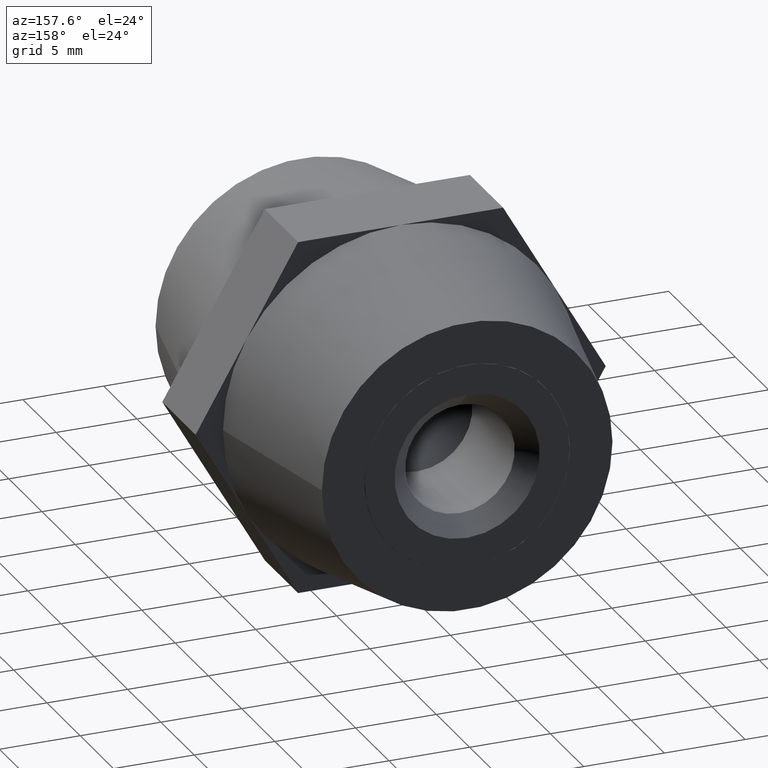
[diagram: clean part render]
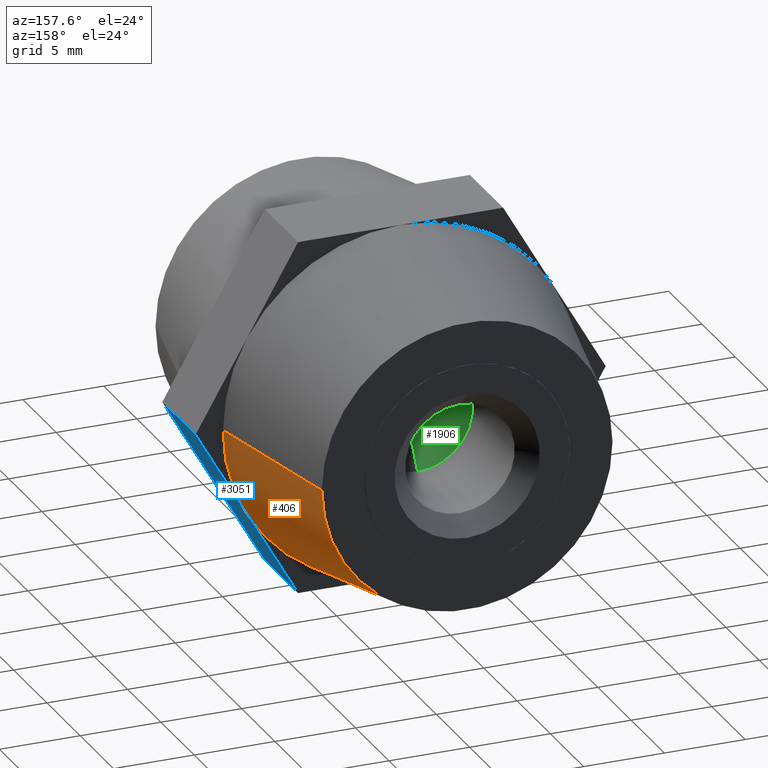
[diagram: same view with three faces highlighted in distinct colors, each labeled with its STEP entity id]
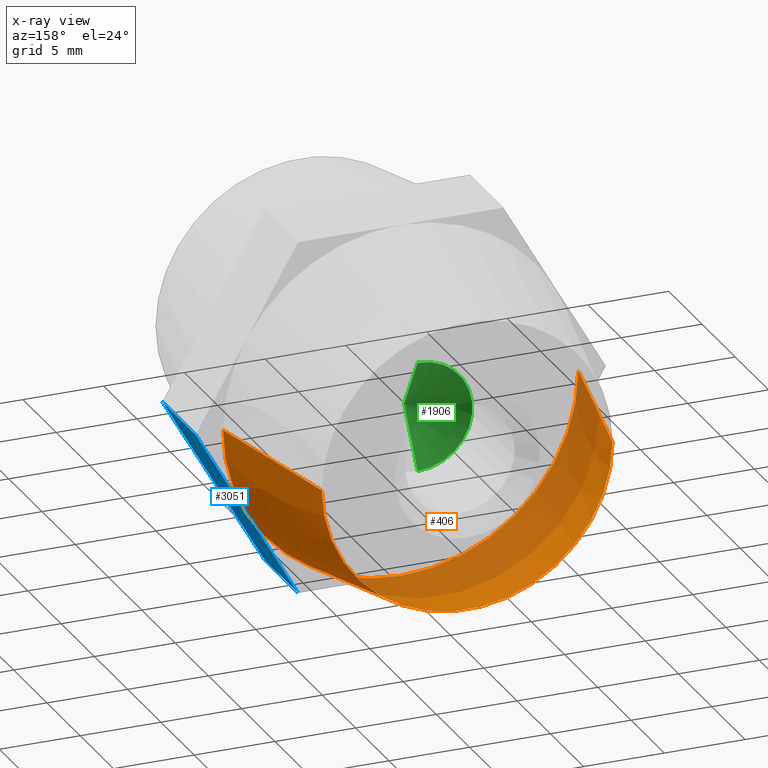
[diagram: x-ray of the same camera — body ghosted, the three highlighted faces saturated]
A machine part, auxiliary view with three faces highlighted in distinct colors.
The next image is the same camera in x-ray (body ghosted, the three faces saturated) — at least one of them is partly hidden behind the body in this view.
Their STEP definitions:

[orange] entity #406 — the highlighted conical surface has half-angle 11.31 deg.
#46 = DIRECTION ( 'NONE',  ( -1.000000000000000000, -1.927470528863119000E-016, 0.0000000000000000000 ) ) ;
#114 = CARTESIAN_POINT ( 'NONE',  ( -9.000000000000000000, 12.49999999999999800, 1.102182119232617700E-015 ) ) ;
#171 = CARTESIAN_POINT ( 'NONE',  ( 1.224646799147351900E-015, 2.500000000000000000, 0.0000000000000000000 ) ) ;
#202 = CARTESIAN_POINT ( 'NONE',  ( -1.349783804395671800E-031, 12.50000000000000000, 0.0000000000000000000 ) ) ;
#215 = CIRCLE ( 'NONE', #3615, 11.00000000000000000 ) ;
#355 = AXIS2_PLACEMENT_3D ( 'NONE', #607, #2669, #941 ) ;
#406 = ADVANCED_FACE ( 'NONE', ( #2688 ), #3641, .T. ) ;
#422 = ORIENTED_EDGE ( 'NONE', *, *, #2047, .T. ) ;
#430 = ORIENTED_EDGE ( 'NONE', *, *, #2534, .T. ) ;
#464 = VECTOR ( 'NONE', #3655, 1000.000000000000100 ) ;
#517 = LINE ( 'NONE', #719, #464 ) ;
#598 = ORIENTED_EDGE ( 'NONE', *, *, #1521, .T. ) ;
#607 = CARTESIAN_POINT ( 'NONE',  ( 1.224646799147351900E-015, 2.500000000000000000, 0.0000000000000000000 ) ) ;
#629 = CIRCLE ( 'NONE', #1435, 11.00000000000000000 ) ;
#643 = EDGE_CURVE ( 'NONE', #3671, #1473, #1945, .T. ) ;
#664 = EDGE_CURVE ( 'NONE', #876, #1597, #1136, .T. ) ;
#713 = CARTESIAN_POINT ( 'NONE',  ( 1.224646799147351900E-015, 2.500000000000000000, 0.0000000000000000000 ) ) ;
#719 = CARTESIAN_POINT ( 'NONE',  ( 9.000000000000000000, 12.50000000000000200, 0.0000000000000000000 ) ) ;
#876 = VERTEX_POINT ( 'NONE', #2843 ) ;
#941 = DIRECTION ( 'NONE',  ( -1.000000000000000000, -1.182766006347823100E-016, 0.0000000000000000000 ) ) ;
#967 = VERTEX_POINT ( 'NONE', #2575 ) ;
#1000 = DIRECTION ( 'NONE',  ( -0.1961161351381839600, -0.9805806756909202200, 2.401729971581268900E-017 ) ) ;
#1013 = DIRECTION ( 'NONE',  ( -1.224646799147352000E-016, 1.000000000000000000, 0.0000000000000000000 ) ) ;
#1058 = DIRECTION ( 'NONE',  ( -1.000000000000000000, -1.182766006347823100E-016, 0.0000000000000000000 ) ) ;
#1102 = CIRCLE ( 'NONE', #355, 11.00000000000000000 ) ;
#1128 = DIRECTION ( 'NONE',  ( -1.224646799147352000E-016, 1.000000000000000000, 0.0000000000000000000 ) ) ;
#1136 = LINE ( 'NONE', #114, #1992 ) ;
#1139 = CARTESIAN_POINT ( 'NONE',  ( 9.000000000000000000, 12.50000000000000200, 0.0000000000000000000 ) ) ;
#1164 = CARTESIAN_POINT ( 'NONE',  ( 9.526279441628821200, 2.500000000000000000, -5.500000000000000000 ) ) ;
#1239 = ORIENTED_EDGE ( 'NONE', *, *, #2522, .F. ) ;
#1270 = DIRECTION ( 'NONE',  ( -1.000000000000000000, -1.182766006347823100E-016, 0.0000000000000000000 ) ) ;
#1286 = CARTESIAN_POINT ( 'NONE',  ( -9.526279441628831900, 2.500000000000000000, -5.500000000000000000 ) ) ;
#1346 = DIRECTION ( 'NONE',  ( 1.224646799147352000E-016, -1.000000000000000000, 0.0000000000000000000 ) ) ;
#1435 = AXIS2_PLACEMENT_3D ( 'NONE', #2081, #1128, #1270 ) ;
#1469 = VERTEX_POINT ( 'NONE', #1286 ) ;
#1473 = VERTEX_POINT ( 'NONE', #1787 ) ;
#1521 = EDGE_CURVE ( 'NONE', #967, #3671, #215, .T. ) ;
#1523 = VERTEX_POINT ( 'NONE', #1139 ) ;
#1597 = VERTEX_POINT ( 'NONE', #3483 ) ;
#1658 = DIRECTION ( 'NONE',  ( 1.000000000000000000, 1.927470528863119000E-016, 0.0000000000000000000 ) ) ;
#1713 = DIRECTION ( 'NONE',  ( -1.224646799147352000E-016, 1.000000000000000000, 0.0000000000000000000 ) ) ;
#1735 = CIRCLE ( 'NONE', #3299, 9.000000000000000000 ) ;
#1783 = ORIENTED_EDGE ( 'NONE', *, *, #664, .F. ) ;
#1787 = CARTESIAN_POINT ( 'NONE',  ( -1.349783804395671800E-031, 2.500000000000000000, -11.00000000000000000 ) ) ;
#1945 = CIRCLE ( 'NONE', #3525, 11.00000000000000000 ) ;
#1992 = VECTOR ( 'NONE', #1000, 1000.000000000000000 ) ;
#2006 = AXIS2_PLACEMENT_3D ( 'NONE', #202, #1346, #1658 ) ;
#2047 = EDGE_CURVE ( 'NONE', #1469, #1597, #629, .T. ) ;
#2081 = CARTESIAN_POINT ( 'NONE',  ( 1.224646799147351900E-015, 2.500000000000000000, 0.0000000000000000000 ) ) ;
#2152 = ORIENTED_EDGE ( 'NONE', *, *, #643, .T. ) ;
#2448 = DIRECTION ( 'NONE',  ( -1.000000000000000000, -1.182766006347823100E-016, 0.0000000000000000000 ) ) ;
#2522 = EDGE_CURVE ( 'NONE', #1523, #876, #1735, .T. ) ;
#2534 = EDGE_CURVE ( 'NONE', #1473, #1469, #1102, .T. ) ;
#2575 = CARTESIAN_POINT ( 'NONE',  ( 11.00000000000000200, 2.500000000000001800, 0.0000000000000000000 ) ) ;
#2669 = DIRECTION ( 'NONE',  ( -1.224646799147352000E-016, 1.000000000000000000, 0.0000000000000000000 ) ) ;
#2688 = FACE_OUTER_BOUND ( 'NONE', #3027, .T. ) ;
#2843 = CARTESIAN_POINT ( 'NONE',  ( -9.000000000000000000, 12.49999999999999800, 1.224646799147353300E-015 ) ) ;
#2981 = DIRECTION ( 'NONE',  ( -1.224646799147352000E-016, 1.000000000000000000, 0.0000000000000000000 ) ) ;
#3027 = EDGE_LOOP ( 'NONE', ( #1783, #1239, #3511, #598, #2152, #430, #422 ) ) ;
#3295 = EDGE_CURVE ( 'NONE', #1523, #967, #517, .T. ) ;
#3299 = AXIS2_PLACEMENT_3D ( 'NONE', #3421, #2981, #46 ) ;
#3421 = CARTESIAN_POINT ( 'NONE',  ( -1.349783804395671800E-031, 12.50000000000000000, 0.0000000000000000000 ) ) ;
#3483 = CARTESIAN_POINT ( 'NONE',  ( -10.99999999999999800, 2.499999999999998200, 1.347111479062088400E-015 ) ) ;
#3511 = ORIENTED_EDGE ( 'NONE', *, *, #3295, .T. ) ;
#3525 = AXIS2_PLACEMENT_3D ( 'NONE', #713, #1013, #2448 ) ;
#3615 = AXIS2_PLACEMENT_3D ( 'NONE', #171, #1713, #1058 ) ;
#3641 = CONICAL_SURFACE ( 'NONE', #2006, 9.000000000000000000, 0.1973955598498807800 ) ;
#3655 = DIRECTION ( 'NONE',  ( 0.1961161351381841600, -0.9805806756909201100, 0.0000000000000000000 ) ) ;
#3671 = VERTEX_POINT ( 'NONE', #1164 ) ;

[blue] entity #3051 — the highlighted planar face has unit normal (-0.866, 0, 0.5).
#20 = LINE ( 'NONE', #3334, #1226 ) ;
#66 = VECTOR ( 'NONE', #2553, 1000.000000000000000 ) ;
#95 = EDGE_CURVE ( 'NONE', #3671, #1488, #1709, .T. ) ;
#262 = EDGE_CURVE ( 'NONE', #2452, #1141, #20, .T. ) ;
#342 = LINE ( 'NONE', #3532, #3034 ) ;
#350 = CARTESIAN_POINT ( 'NONE',  ( 12.70170592217176000, 2.500000000000000000, -2.884158672701469700E-015 ) ) ;
#368 = EDGE_CURVE ( 'NONE', #582, #3671, #3148, .T. ) ;
#376 = EDGE_CURVE ( 'NONE', #1141, #1183, #3463, .T. ) ;
#523 = EDGE_CURVE ( 'NONE', #1488, #1183, #1446, .T. ) ;
#582 = VERTEX_POINT ( 'NONE', #2719 ) ;
#653 = DIRECTION ( 'NONE',  ( -0.8660254037844387100, 0.0000000000000000000, 0.4999999999999998900 ) ) ;
#687 = CARTESIAN_POINT ( 'NONE',  ( 12.70170592217176000, 2.500000000000000000, -2.884158672701469700E-015 ) ) ;
#782 = CARTESIAN_POINT ( 'NONE',  ( 12.70170592217176000, -2.500000000000000000, -2.884158672701469700E-015 ) ) ;
#936 = VECTOR ( 'NONE', #1087, 1000.000000000000000 ) ;
#1087 = DIRECTION ( 'NONE',  ( -0.4999999999999998900, 0.0000000000000000000, -0.8660254037844387100 ) ) ;
#1103 = EDGE_CURVE ( 'NONE', #582, #2452, #342, .T. ) ;
#1141 = VERTEX_POINT ( 'NONE', #2385 ) ;
#1164 = CARTESIAN_POINT ( 'NONE',  ( 9.526279441628821200, 2.500000000000000000, -5.500000000000000000 ) ) ;
#1175 = DIRECTION ( 'NONE',  ( 0.0000000000000000000, -1.000000000000000000, 0.0000000000000000000 ) ) ;
#1183 = VERTEX_POINT ( 'NONE', #2707 ) ;
#1226 = VECTOR ( 'NONE', #3039, 1000.000000000000000 ) ;
#1340 = CARTESIAN_POINT ( 'NONE',  ( 6.350852961085879900, 2.500000000000000000, -11.00000000000000000 ) ) ;
#1415 = ORIENTED_EDGE ( 'NONE', *, *, #95, .F. ) ;
#1439 = ORIENTED_EDGE ( 'NONE', *, *, #262, .T. ) ;
#1446 = LINE ( 'NONE', #2514, #3373 ) ;
#1488 = VERTEX_POINT ( 'NONE', #1340 ) ;
#1646 = AXIS2_PLACEMENT_3D ( 'NONE', #350, #653, #2398 ) ;
#1662 = CARTESIAN_POINT ( 'NONE',  ( 12.70170592217176000, -2.500000000000000000, -2.884158672701469700E-015 ) ) ;
#1709 = LINE ( 'NONE', #2594, #936 ) ;
#1728 = FACE_OUTER_BOUND ( 'NONE', #3388, .T. ) ;
#2322 = VECTOR ( 'NONE', #2794, 1000.000000000000000 ) ;
#2338 = ORIENTED_EDGE ( 'NONE', *, *, #376, .T. ) ;
#2378 = ORIENTED_EDGE ( 'NONE', *, *, #523, .F. ) ;
#2385 = CARTESIAN_POINT ( 'NONE',  ( 9.526279441628821200, -2.500000000000000000, -5.500000000000000000 ) ) ;
#2398 = DIRECTION ( 'NONE',  ( 0.4999999999999998900, 0.0000000000000000000, 0.8660254037844387100 ) ) ;
#2409 = PLANE ( 'NONE',  #1646 ) ;
#2452 = VERTEX_POINT ( 'NONE', #1662 ) ;
#2514 = CARTESIAN_POINT ( 'NONE',  ( 6.350852961085879900, 2.500000000000000000, -11.00000000000000000 ) ) ;
#2553 = DIRECTION ( 'NONE',  ( -0.4999999999999998900, 0.0000000000000000000, -0.8660254037844387100 ) ) ;
#2562 = DIRECTION ( 'NONE',  ( 0.0000000000000000000, -1.000000000000000000, 0.0000000000000000000 ) ) ;
#2594 = CARTESIAN_POINT ( 'NONE',  ( 12.70170592217176000, 2.500000000000000000, -2.884158672701469700E-015 ) ) ;
#2707 = CARTESIAN_POINT ( 'NONE',  ( 6.350852961085879900, -2.500000000000000000, -11.00000000000000000 ) ) ;
#2719 = CARTESIAN_POINT ( 'NONE',  ( 12.70170592217176000, 2.500000000000000000, -2.884158672701469700E-015 ) ) ;
#2794 = DIRECTION ( 'NONE',  ( -0.4999999999999998900, 0.0000000000000000000, -0.8660254037844387100 ) ) ;
#3034 = VECTOR ( 'NONE', #1175, 1000.000000000000000 ) ;
#3039 = DIRECTION ( 'NONE',  ( -0.4999999999999998900, 0.0000000000000000000, -0.8660254037844387100 ) ) ;
#3051 = ADVANCED_FACE ( 'NONE', ( #1728 ), #2409, .F. ) ;
#3148 = LINE ( 'NONE', #687, #2322 ) ;
#3213 = ORIENTED_EDGE ( 'NONE', *, *, #368, .F. ) ;
#3334 = CARTESIAN_POINT ( 'NONE',  ( 12.70170592217176000, -2.500000000000000000, -2.884158672701469700E-015 ) ) ;
#3373 = VECTOR ( 'NONE', #2562, 1000.000000000000000 ) ;
#3388 = EDGE_LOOP ( 'NONE', ( #1439, #2338, #2378, #1415, #3213, #3723 ) ) ;
#3463 = LINE ( 'NONE', #782, #66 ) ;
#3532 = CARTESIAN_POINT ( 'NONE',  ( 12.70170592217176000, 2.500000000000000000, -2.884158672701469700E-015 ) ) ;
#3671 = VERTEX_POINT ( 'NONE', #1164 ) ;
#3723 = ORIENTED_EDGE ( 'NONE', *, *, #1103, .T. ) ;

[green] entity #1906 — the highlighted conical surface has half-angle 59 deg.
#2 = CARTESIAN_POINT ( 'NONE',  ( 4.163799117101000600E-016, 2.540000000000000000, -3.399999999999999900 ) ) ;
#139 = CARTESIAN_POINT ( 'NONE',  ( 0.0000000000000000000, 2.540000000000000000, 3.399999999999999900 ) ) ;
#471 = CARTESIAN_POINT ( 'NONE',  ( -2.327545607329394800E-015, 0.4970738953062950300, 0.0000000000000000000 ) ) ;
#546 = CONICAL_SURFACE ( 'NONE', #2618, 3.399999999999999900, 1.029744258676653600 ) ;
#753 = ORIENTED_EDGE ( 'NONE', *, *, #2513, .T. ) ;
#855 = DIRECTION ( 'NONE',  ( 1.049727191138618200E-016, 0.5150380749100549300, -0.8571673007021118900 ) ) ;
#949 = DIRECTION ( 'NONE',  ( 0.0000000000000000000, 1.000000000000000000, 0.0000000000000000000 ) ) ;
#978 = LINE ( 'NONE', #2608, #1388 ) ;
#1091 = CARTESIAN_POINT ( 'NONE',  ( 0.0000000000000000000, 2.540000000000000000, 0.0000000000000000000 ) ) ;
#1124 = VECTOR ( 'NONE', #1756, 999.9999999999998900 ) ;
#1388 = VECTOR ( 'NONE', #855, 999.9999999999998900 ) ;
#1647 = VERTEX_POINT ( 'NONE', #2 ) ;
#1691 = ORIENTED_EDGE ( 'NONE', *, *, #3587, .F. ) ;
#1706 = DIRECTION ( 'NONE',  ( 0.0000000000000000000, 1.000000000000000000, 0.0000000000000000000 ) ) ;
#1756 = DIRECTION ( 'NONE',  ( 0.0000000000000000000, 0.5150380749100549300, 0.8571673007021118900 ) ) ;
#1789 = DIRECTION ( 'NONE',  ( 0.0000000000000000000, 0.0000000000000000000, 1.000000000000000000 ) ) ;
#1906 = ADVANCED_FACE ( 'NONE', ( #2881 ), #546, .F. ) ;
#2038 = ORIENTED_EDGE ( 'NONE', *, *, #3642, .T. ) ;
#2111 = CARTESIAN_POINT ( 'NONE',  ( 0.0000000000000000000, 2.540000000000000000, 0.0000000000000000000 ) ) ;
#2294 = AXIS2_PLACEMENT_3D ( 'NONE', #1091, #1706, #3755 ) ;
#2301 = VERTEX_POINT ( 'NONE', #139 ) ;
#2331 = CIRCLE ( 'NONE', #2294, 3.399999999999999900 ) ;
#2513 = EDGE_CURVE ( 'NONE', #1647, #2301, #2331, .T. ) ;
#2536 = LINE ( 'NONE', #3802, #1124 ) ;
#2608 = CARTESIAN_POINT ( 'NONE',  ( 4.163799117101000600E-016, 2.540000000000000000, -3.399999999999999900 ) ) ;
#2618 = AXIS2_PLACEMENT_3D ( 'NONE', #2111, #949, #1789 ) ;
#2714 = VERTEX_POINT ( 'NONE', #471 ) ;
#2881 = FACE_OUTER_BOUND ( 'NONE', #3368, .T. ) ;
#3368 = EDGE_LOOP ( 'NONE', ( #1691, #2038, #753 ) ) ;
#3587 = EDGE_CURVE ( 'NONE', #2714, #2301, #2536, .T. ) ;
#3642 = EDGE_CURVE ( 'NONE', #2714, #1647, #978, .T. ) ;
#3755 = DIRECTION ( 'NONE',  ( 0.0000000000000000000, 0.0000000000000000000, 1.000000000000000000 ) ) ;
#3802 = CARTESIAN_POINT ( 'NONE',  ( 0.0000000000000000000, 2.540000000000000000, 3.399999999999999900 ) ) ;